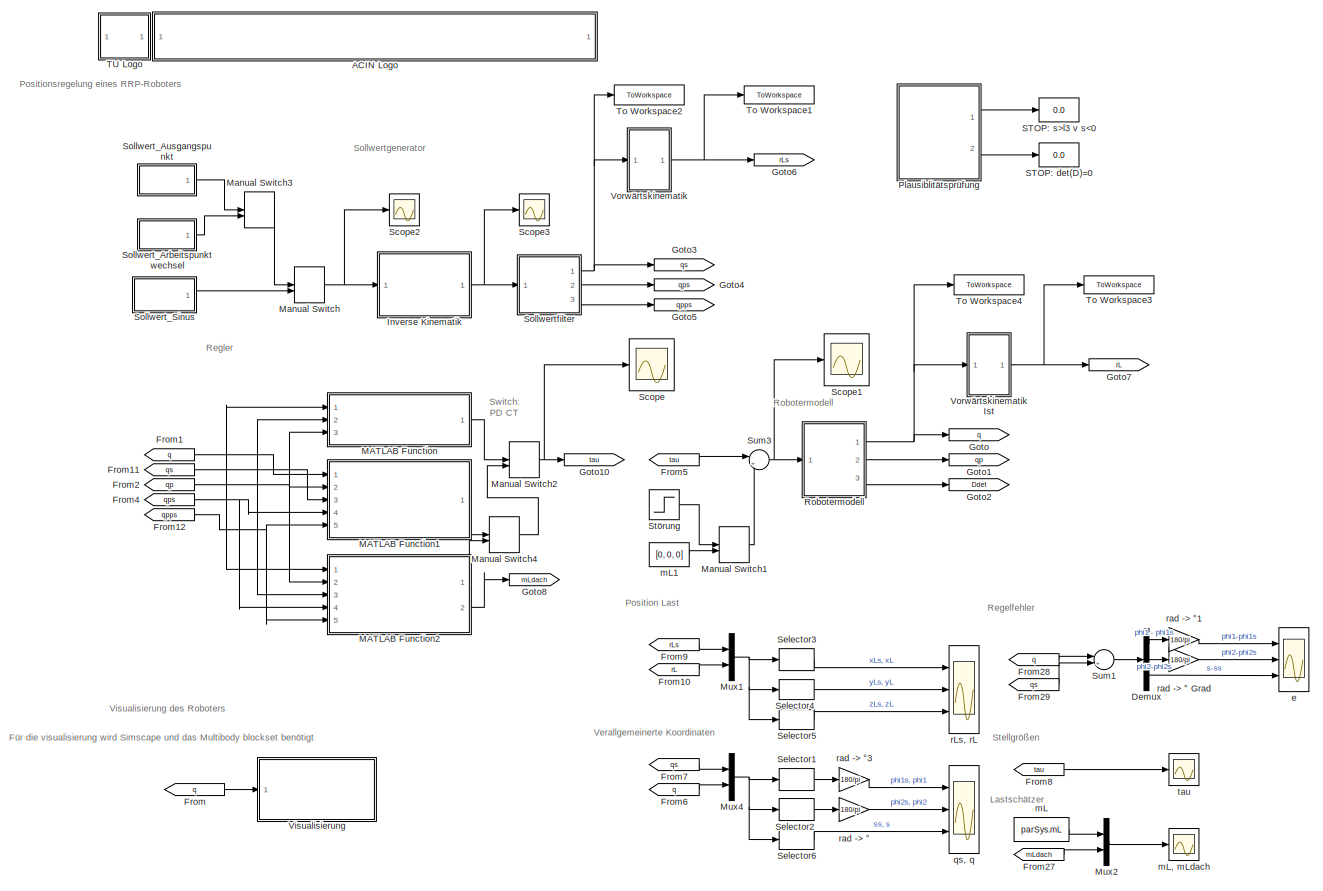
[diagram: root canvas - part 1/2, most of the canvas]
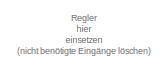
[diagram: root canvas - part 2/2, middle left region]
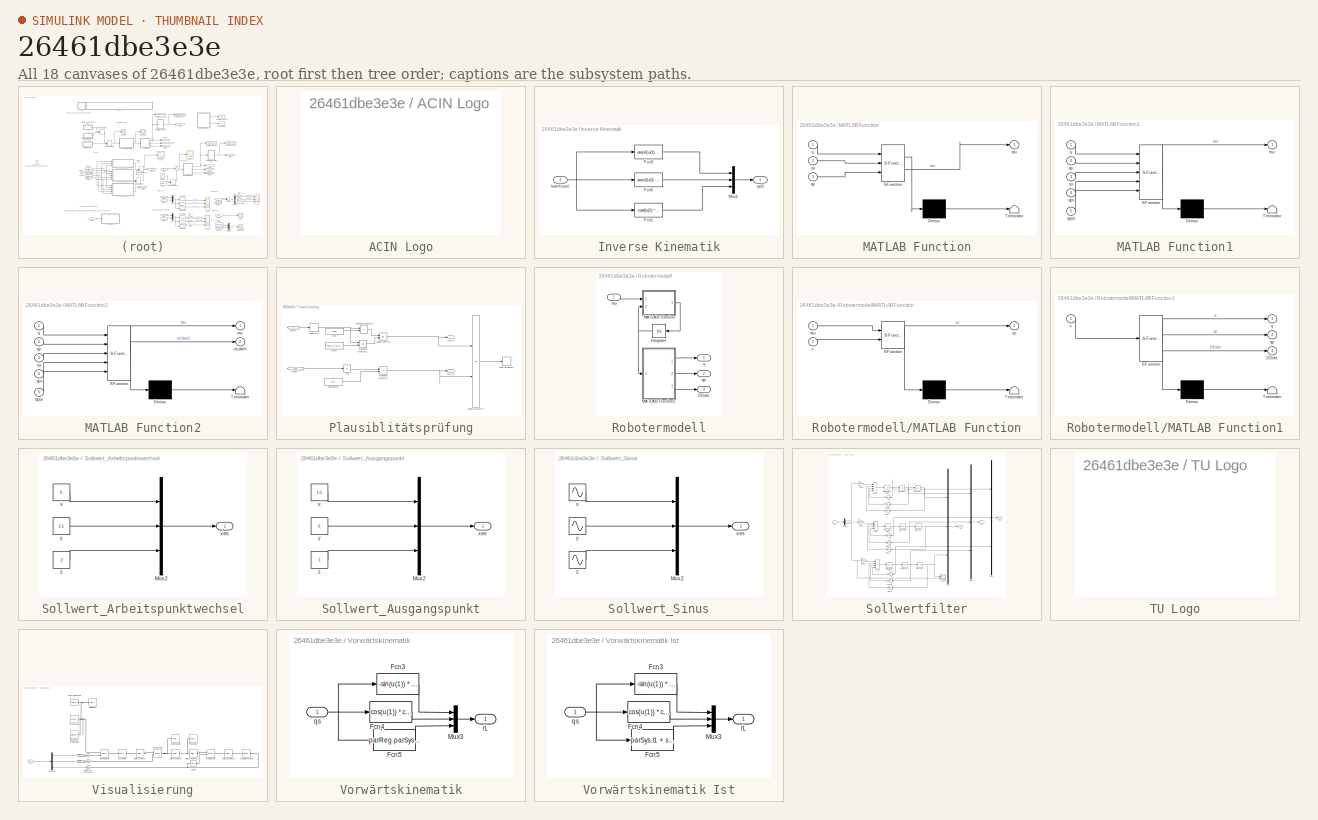
[diagram: thumbnail index - all 18 canvases of the model, root first then tree order]
MODEL slx_26461dbe3e3e
KIND model
CONFIG AbsTol = 1e-5
CONFIG EnableMultiTasking = on
CONFIG FixedStep = auto
CONFIG InitFcn = set_parameter
CONFIG MaxStep = auto
CONFIG MinStep = auto
CONFIG RelTol = 1e-6
CONFIG SampleTimeConstraint = Unconstrained
CONFIG SolverName = ode15s
CONFIG StartFcn = set_parameter
CONFIG StartTime = 0.0
CONFIG StopTime = 5
BLOCK [SubSystem] ACIN Logo
  Ports = []
  RequestExecContextInheritance = off
  UserDataPersistent = on
BLOCK [Demux] Demux
  Outputs = 3
  Ports = [1, 3]
BLOCK [From] From
  GotoTag = q
  TagVisibility = global
BLOCK [From] From1
  CloseFcn = tagdialog Close
  GotoTag = q
  TagVisibility = global
BLOCK [From] From10
  CloseFcn = tagdialog Close
  GotoTag = rL
  TagVisibility = global
BLOCK [From] From11
  CloseFcn = tagdialog Close
  GotoTag = qs
  TagVisibility = global
BLOCK [From] From12
  CloseFcn = tagdialog Close
  GotoTag = qpps
  TagVisibility = global
BLOCK [From] From2
  CloseFcn = tagdialog Close
  GotoTag = qp
  TagVisibility = global
BLOCK [From] From27
  CloseFcn = tagdialog Close
  GotoTag = mLdach
BLOCK [From] From28
  CloseFcn = tagdialog Close
  GotoTag = q
  TagVisibility = global
BLOCK [From] From29
  CloseFcn = tagdialog Close
  GotoTag = qs
  TagVisibility = global
BLOCK [From] From4
  CloseFcn = tagdialog Close
  GotoTag = qps
  TagVisibility = global
BLOCK [From] From5
  CloseFcn = tagdialog Close
  GotoTag = tau
  TagVisibility = global
BLOCK [From] From6
  CloseFcn = tagdialog Close
  GotoTag = q
  TagVisibility = global
BLOCK [From] From7
  CloseFcn = tagdialog Close
  GotoTag = qs
  TagVisibility = global
BLOCK [From] From8
  CloseFcn = tagdialog Close
  GotoTag = tau
  TagVisibility = global
BLOCK [From] From9
  CloseFcn = tagdialog Close
  GotoTag = rLs
  TagVisibility = global
BLOCK [Goto] Goto
  GotoTag = q
  TagVisibility = global
BLOCK [Goto] Goto1
  GotoTag = qp
  TagVisibility = global
BLOCK [Goto] Goto10
  GotoTag = tau
  TagVisibility = global
BLOCK [Goto] Goto2
  GotoTag = Ddet
  TagVisibility = global
BLOCK [Goto] Goto3
  GotoTag = qs
  TagVisibility = global
BLOCK [Goto] Goto4
  GotoTag = qps
  TagVisibility = global
BLOCK [Goto] Goto5
  GotoTag = qpps
  TagVisibility = global
BLOCK [Goto] Goto6
  GotoTag = rLs
  TagVisibility = global
BLOCK [Goto] Goto7
  GotoTag = rL
  TagVisibility = global
BLOCK [Goto] Goto8
  GotoTag = mLdach
BLOCK [SubSystem] Inverse Kinematik
  Ports = [1, 1]
  RequestExecContextInheritance = off
BLOCK [Fcn] Inverse Kinematik/Fcn1
  Expr = sqrt((u(1) ^ 2 + u(2) ^ 2 + u(3) ^ 2 - 2 * u(3) * parReg.parSys.l1 + parReg.parSys.l1 ^ 2)) - parReg.parSys.l2
BLOCK [Fcn] Inverse Kinematik/Fcn3
  Expr = atan2(-u(1), u(2))
BLOCK [Fcn] Inverse Kinematik/Fcn5
  Expr = atan2(u(3) - parReg.parSys.l1, sqrt(u(1) ^ 2 + u(2) ^ 2))
BLOCK [Mux] Inverse Kinematik/Mux1
  DisplayOption = bar
  Inputs = 3
  Ports = [3, 1]
BLOCK [Inport] Inverse Kinematik/kart.Koord
BLOCK [Outport] Inverse Kinematik/qsD
BLOCK [SubSystem] MATLAB Function
  ErrorFcn = Stateflow.Translate.translate
  PermitHierarchicalResolution = ExplicitOnly
  Ports = [3, 1]
  RequestExecContextInheritance = off
  SFBlockType = MATLAB Function
  TreatAsAtomicUnit = on
BLOCK [Demux] MATLAB Function/ Demux 
  Outputs = 1
  Ports = [1, 1]
BLOCK [S-Function] MATLAB Function/ SFunction 
  EnableBusSupport = on
  FunctionName = sf_sfun
  Parameters = parReg
  PortCounts = [3 2]
  Ports = [3, 2]
  SFcnIsStateOwnerBlock = off
  SFunctionDeploymentMode = off
  Tag = Stateflow S-Function 2
BLOCK [Terminator] MATLAB Function/ Terminator 
BLOCK [Inport] MATLAB Function/q
BLOCK [Inport] MATLAB Function/qp
  Port = 3
BLOCK [Inport] MATLAB Function/qs
  Port = 2
BLOCK [Outport] MATLAB Function/tau
BLOCK [SubSystem] MATLAB Function1
  ErrorFcn = Stateflow.Translate.translate
  PermitHierarchicalResolution = ExplicitOnly
  Ports = [5, 1]
  RequestExecContextInheritance = off
  SFBlockType = MATLAB Function
  TreatAsAtomicUnit = on
BLOCK [Demux] MATLAB Function1/ Demux 
  Outputs = 1
  Ports = [1, 1]
BLOCK [S-Function] MATLAB Function1/ SFunction 
  EnableBusSupport = on
  FunctionName = sf_sfun
  Parameters = parReg
  PortCounts = [5 2]
  Ports = [5, 2]
  SFcnIsStateOwnerBlock = off
  SFunctionDeploymentMode = off
  Tag = Stateflow S-Function 1
BLOCK [Terminator] MATLAB Function1/ Terminator 
BLOCK [Inport] MATLAB Function1/q
BLOCK [Inport] MATLAB Function1/qp
  Port = 2
BLOCK [Inport] MATLAB Function1/qpps
  Port = 5
BLOCK [Inport] MATLAB Function1/qps
  Port = 4
BLOCK [Inport] MATLAB Function1/qs
  Port = 3
BLOCK [Outport] MATLAB Function1/tau
BLOCK [SubSystem] MATLAB Function2
  ErrorFcn = Stateflow.Translate.translate
  PermitHierarchicalResolution = ExplicitOnly
  Ports = [5, 2]
  RequestExecContextInheritance = off
  SFBlockType = MATLAB Function
  TreatAsAtomicUnit = on
BLOCK [Demux] MATLAB Function2/ Demux 
  Outputs = 1
  Ports = [1, 1]
BLOCK [S-Function] MATLAB Function2/ SFunction 
  EnableBusSupport = on
  FunctionName = sf_sfun
  Parameters = parReg
  PortCounts = [5 3]
  Ports = [5, 3]
  SFcnIsStateOwnerBlock = off
  SFunctionDeploymentMode = off
  Tag = Stateflow S-Function 3
BLOCK [Terminator] MATLAB Function2/ Terminator 
BLOCK [Outport] MATLAB Function2/mLdach
  Port = 2
BLOCK [Inport] MATLAB Function2/q
BLOCK [Inport] MATLAB Function2/qp
  Port = 2
BLOCK [Inport] MATLAB Function2/qpps
  Port = 5
BLOCK [Inport] MATLAB Function2/qps
  Port = 4
BLOCK [Inport] MATLAB Function2/qs
  Port = 3
BLOCK [Outport] MATLAB Function2/tau
BLOCK [ManualSwitch] Manual Switch
BLOCK [ManualSwitch] Manual Switch1
  CurrentSetting = 0
BLOCK [ManualSwitch] Manual Switch2
BLOCK [ManualSwitch] Manual Switch3
  CurrentSetting = 0
BLOCK [ManualSwitch] Manual Switch4
  CurrentSetting = 0
BLOCK [Mux] Mux1
  DisplayOption = bar
  Inputs = 2
  Ports = [2, 1]
BLOCK [Mux] Mux2
  DisplayOption = bar
  Inputs = 2
  Ports = [2, 1]
BLOCK [Mux] Mux4
  DisplayOption = bar
  Inputs = 2
  Ports = [2, 1]
BLOCK [SubSystem] Plausiblitätsprüfung
  Ports = [0, 2]
  RequestExecContextInheritance = off
BLOCK [Abs] Plausiblitätsprüfung/Abs
  SaturateOnIntegerOverflow = off
BLOCK [From] Plausiblitätsprüfung/From2
  CloseFcn = tagdialog Close
  GotoTag = Ddet
  TagVisibility = global
BLOCK [From] Plausiblitätsprüfung/From6
  CloseFcn = tagdialog Close
  GotoTag = q
  TagVisibility = global
BLOCK [Logic] Plausiblitätsprüfung/Logical Operator
  AllPortsSameDT = off
  Operator = OR
  OutDataTypeStr = boolean
  Ports = [2, 1]
BLOCK [Logic] Plausiblitätsprüfung/Logical Operator1
  AllPortsSameDT = off
  Operator = OR
  OutDataTypeStr = boolean
  Ports = [2, 1]
BLOCK [RelationalOperator] Plausiblitätsprüfung/Relational Operator
  InputSameDT = off
  Operator = <=
  OutDataTypeStr = boolean
  Ports = [2, 1]
BLOCK [RelationalOperator] Plausiblitätsprüfung/Relational Operator1
  InputSameDT = off
  OutDataTypeStr = boolean
  Ports = [2, 1]
BLOCK [RelationalOperator] Plausiblitätsprüfung/Relational Operator2
  InputSameDT = off
  Operator = <=
  OutDataTypeStr = boolean
  Ports = [2, 1]
BLOCK [Outport] Plausiblitätsprüfung/STOP_D
  Port = 2
BLOCK [Outport] Plausiblitätsprüfung/STOP_s
BLOCK [Constant] Plausiblitätsprüfung/Schwellwert
  Value = 1e-4
BLOCK [Selector] Plausiblitätsprüfung/Selector3
  IndexOptions = Index vector (dialog)
  Indices = [3]
  InputPortWidth = 3
  OutputSizes = 1
  Ports = [1, 1]
BLOCK [Stop] Plausiblitätsprüfung/Stop Simulation1
BLOCK [Constant] Plausiblitätsprüfung/smax
  Value = parSys.l3-0.001
BLOCK [Constant] Plausiblitätsprüfung/smin
  Value = 0.001
BLOCK [SubSystem] Robotermodell
  Ports = [1, 3]
  RequestExecContextInheritance = off
BLOCK [Outport] Robotermodell/DDdet
  Port = 3
BLOCK [Integrator] Robotermodell/Integrator
  InitialCondition = [parSys.phi10; parSys.phi20; parSys.s0; parSys.phi1p0; parSys.phi2p0; parSys.sp0]
  Ports = [1, 1]
BLOCK [SubSystem] Robotermodell/MATLAB Function
  ErrorFcn = Stateflow.Translate.translate
  PermitHierarchicalResolution = ExplicitOnly
  Ports = [2, 1]
  RequestExecContextInheritance = off
  SFBlockType = MATLAB Function
  TreatAsAtomicUnit = on
BLOCK [Demux] Robotermodell/MATLAB Function/ Demux 
  Outputs = 1
  Ports = [1, 1]
BLOCK [S-Function] Robotermodell/MATLAB Function/ SFunction 
  EnableBusSupport = on
  FunctionName = sf_sfun
  Parameters = parSys
  PortCounts = [2 2]
  Ports = [2, 2]
  SFcnIsStateOwnerBlock = off
  SFunctionDeploymentMode = off
  Tag = Stateflow S-Function 6
BLOCK [Terminator] Robotermodell/MATLAB Function/ Terminator 
BLOCK [Inport] Robotermodell/MATLAB Function/tau
BLOCK [Inport] Robotermodell/MATLAB Function/x
  Port = 2
BLOCK [Outport] Robotermodell/MATLAB Function/xp
BLOCK [SubSystem] Robotermodell/MATLAB Function1
  ErrorFcn = Stateflow.Translate.translate
  PermitHierarchicalResolution = ExplicitOnly
  Ports = [1, 3]
  RequestExecContextInheritance = off
  SFBlockType = MATLAB Function
  TreatAsAtomicUnit = on
BLOCK [Demux] Robotermodell/MATLAB Function1/ Demux 
  Outputs = 1
  Ports = [1, 1]
BLOCK [S-Function] Robotermodell/MATLAB Function1/ SFunction 
  EnableBusSupport = on
  FunctionName = sf_sfun
  Parameters = parSys
  PortCounts = [1 4]
  Ports = [1, 4]
  SFcnIsStateOwnerBlock = off
  SFunctionDeploymentMode = off
  Tag = Stateflow S-Function 7
BLOCK [Terminator] Robotermodell/MATLAB Function1/ Terminator 
BLOCK [Outport] Robotermodell/MATLAB Function1/DDdet
  Port = 3
BLOCK [Outport] Robotermodell/MATLAB Function1/q
BLOCK [Outport] Robotermodell/MATLAB Function1/qp
  Port = 2
BLOCK [Inport] Robotermodell/MATLAB Function1/x
BLOCK [Outport] Robotermodell/q
BLOCK [Outport] Robotermodell/qp
  Port = 2
BLOCK [Inport] Robotermodell/tau
BLOCK [Display] STOP: det(D)=0
  Decimation = 1
  Ports = [1]
BLOCK [Display] STOP: s>l3 v s<0
  Decimation = 1
  Ports = [1]
BLOCK [Scope] Scope
  Floating = off
  NumInputPorts = 1
  Ports = [1]
  ScopeSpecificationString = Simulink.scopes.TimeScopeBlockCfg('CurrentConfiguration', extmgr.ConfigurationSet(extmgr.Configuration('Core','General UI',true),extmgr.Configuration('Core','Source UI',true),extmgr.Configuration('Sources','WiredSimulink',true,'DataLoggingVariableName','ScopeData1'),extmgr.Configuration('Visuals','Time Domain',true,'SerializedDisplays',{struct('MinYLimReal','-8935.39392','MaxYLimReal','6027.57282'...<+1466ch>
BLOCK [Scope] Scope1
  Floating = off
  NumInputPorts = 1
  Ports = [1]
  ScopeSpecificationString = Simulink.scopes.TimeScopeBlockCfg('CurrentConfiguration', extmgr.ConfigurationSet(extmgr.Configuration('Core','General UI',true),extmgr.Configuration('Core','Source UI',true),extmgr.Configuration('Sources','WiredSimulink',true,'DataLoggingVariableName','ScopeData2'),extmgr.Configuration('Visuals','Time Domain',true,'SerializedDisplays',{struct('MinYLimReal','-8935.39392','MaxYLimReal','6027.57282'...<+1437ch>
BLOCK [Scope] Scope2
  Floating = off
  NumInputPorts = 1
  Ports = [1]
  ScopeSpecificationString = Simulink.scopes.TimeScopeBlockCfg('CurrentConfiguration', extmgr.ConfigurationSet(extmgr.Configuration('Core','General UI',true,'FigureColor',[0.156862745098039 0.156862745098039 0.156862745098039]),extmgr.Configuration('Core','Source UI',true),extmgr.Configuration('Sources','WiredSimulink',true,'DataLoggingVariableName','ScopeData2','DataLoggingSaveFormat','StructureWithTime','DataLoggingDecimati...<+2786ch>
BLOCK [Scope] Scope3
  Floating = off
  NumInputPorts = 1
  Ports = [1]
  ScopeSpecificationString = Simulink.scopes.TimeScopeBlockCfg('CurrentConfiguration', extmgr.ConfigurationSet(extmgr.Configuration('Core','General UI',true,'FigureColor',[0.156862745098039 0.156862745098039 0.156862745098039]),extmgr.Configuration('Core','Source UI',true),extmgr.Configuration('Sources','WiredSimulink',true,'DataLoggingVariableName','ScopeData3','DataLoggingSaveFormat','StructureWithTime','DataLoggingDecimati...<+2798ch>
BLOCK [Selector] Selector1
  IndexOptions = Index vector (dialog)
  Indices = [1 4]
  InputPortWidth = 6
  OutputSizes = 1
  Ports = [1, 1]
BLOCK [Selector] Selector2
  IndexOptions = Index vector (dialog)
  Indices = [2 5]
  InputPortWidth = 6
  OutputSizes = 1
  Ports = [1, 1]
BLOCK [Selector] Selector3
  IndexOptions = Index vector (dialog)
  Indices = [1 4]
  InputPortWidth = 6
  OutputSizes = 1
  Ports = [1, 1]
BLOCK [Selector] Selector4
  IndexOptions = Index vector (dialog)
  Indices = [2 5]
  InputPortWidth = 6
  OutputSizes = 1
  Ports = [1, 1]
BLOCK [Selector] Selector5
  IndexOptions = Index vector (dialog)
  Indices = [3 6]
  InputPortWidth = 6
  OutputSizes = 1
  Ports = [1, 1]
BLOCK [Selector] Selector6
  IndexOptions = Index vector (dialog)
  Indices = [3 6]
  InputPortWidth = 6
  OutputSizes = 1
  Ports = [1, 1]
BLOCK [SubSystem] Sollwert_Arbeitspunktwechsel
  Ports = [0, 1]
  RequestExecContextInheritance = off
BLOCK [Mux] Sollwert_Arbeitspunktwechsel/Mux2
  DisplayOption = bar
  Inputs = 3
  Ports = [3, 1]
BLOCK [Constant] Sollwert_Arbeitspunktwechsel/x
  Value = 0
BLOCK [Outport] Sollwert_Arbeitspunktwechsel/xes
BLOCK [Constant] Sollwert_Arbeitspunktwechsel/y
  Value = 1.5
BLOCK [Constant] Sollwert_Arbeitspunktwechsel/z
  Value = 2
BLOCK [SubSystem] Sollwert_Ausgangspunkt
  Ports = [0, 1]
  RequestExecContextInheritance = off
BLOCK [Mux] Sollwert_Ausgangspunkt/Mux2
  DisplayOption = bar
  Inputs = 3
  Ports = [3, 1]
BLOCK [Constant] Sollwert_Ausgangspunkt/x
  Value = 1.5
BLOCK [Outport] Sollwert_Ausgangspunkt/xes
BLOCK [Constant] Sollwert_Ausgangspunkt/y
  Value = 0
BLOCK [Constant] Sollwert_Ausgangspunkt/z
BLOCK [SubSystem] Sollwert_Sinus
  Ports = [0, 1]
  RequestExecContextInheritance = off
BLOCK [Mux] Sollwert_Sinus/Mux2
  DisplayOption = bar
  Inputs = 3
  Ports = [3, 1]
BLOCK [Sin] Sollwert_Sinus/x
  Amplitude = 1.5
  Frequency = 2*pi*parReg.traj_fKreis
  Phase = pi/2
  Ports = [0, 1]
  SampleTime = 0
BLOCK [Outport] Sollwert_Sinus/xes
BLOCK [Sin] Sollwert_Sinus/y
  Amplitude = 1.5
  Frequency = 2*pi*parReg.traj_fKreis
  Ports = [0, 1]
  SampleTime = 0
BLOCK [Sin] Sollwert_Sinus/z
  Amplitude = 0.5
  Bias = 1.5
  Frequency = 2*pi*parReg.traj_fz
  Phase = -pi/2
  Ports = [0, 1]
  SampleTime = 0
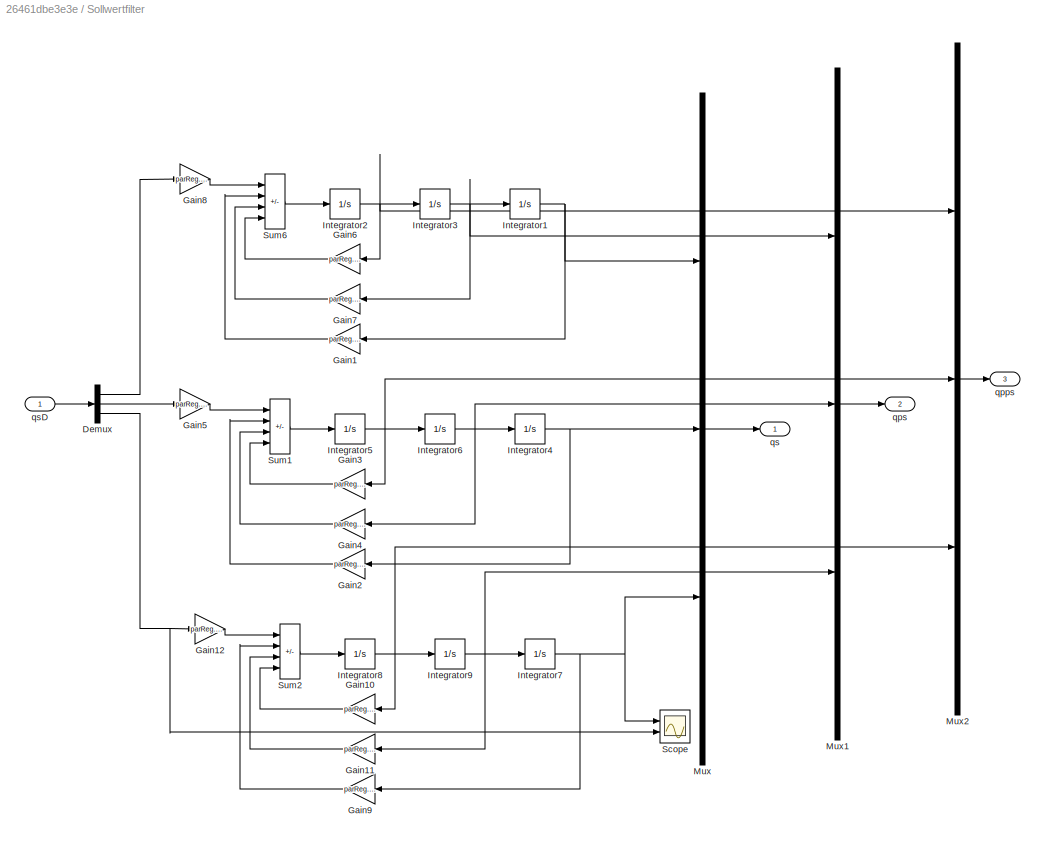
BLOCK [SubSystem] Sollwertfilter
  Ports = [1, 3]
  RequestExecContextInheritance = off
BLOCK [Demux] Sollwertfilter/Demux
  Outputs = 3
  Ports = [1, 3]
BLOCK [Gain] Sollwertfilter/Gain1
  Gain = parReg.par_filt_a0
  OutDataTypeStr = Inherit: Same as input
  ParamDataTypeStr = Inherit: Same as input
  SaturateOnIntegerOverflow = on
BLOCK [Gain] Sollwertfilter/Gain10
  Gain = parReg.par_filt_a2
  OutDataTypeStr = Inherit: Same as input
  ParamDataTypeStr = Inherit: Same as input
  SaturateOnIntegerOverflow = on
BLOCK [Gain] Sollwertfilter/Gain11
  Gain = parReg.par_filt_a1
  OutDataTypeStr = Inherit: Same as input
  ParamDataTypeStr = Inherit: Same as input
  SaturateOnIntegerOverflow = on
BLOCK [Gain] Sollwertfilter/Gain12
  Gain = parReg.par_filt_V
  OutDataTypeStr = Inherit: Same as input
  ParamDataTypeStr = Inherit: Same as input
  SaturateOnIntegerOverflow = on
BLOCK [Gain] Sollwertfilter/Gain2
  Gain = parReg.par_filt_a0
  OutDataTypeStr = Inherit: Same as input
  ParamDataTypeStr = Inherit: Same as input
  SaturateOnIntegerOverflow = on
BLOCK [Gain] Sollwertfilter/Gain3
  Gain = parReg.par_filt_a2
  OutDataTypeStr = Inherit: Same as input
  ParamDataTypeStr = Inherit: Same as input
  SaturateOnIntegerOverflow = on
BLOCK [Gain] Sollwertfilter/Gain4
  Gain = parReg.par_filt_a1
  OutDataTypeStr = Inherit: Same as input
  ParamDataTypeStr = Inherit: Same as input
  SaturateOnIntegerOverflow = on
BLOCK [Gain] Sollwertfilter/Gain5
  Gain = parReg.par_filt_V
  OutDataTypeStr = Inherit: Same as input
  ParamDataTypeStr = Inherit: Same as input
  SaturateOnIntegerOverflow = on
BLOCK [Gain] Sollwertfilter/Gain6
  Gain = parReg.par_filt_a2
  OutDataTypeStr = Inherit: Same as input
  ParamDataTypeStr = Inherit: Same as input
  SaturateOnIntegerOverflow = on
BLOCK [Gain] Sollwertfilter/Gain7
  Gain = parReg.par_filt_a1
  OutDataTypeStr = Inherit: Same as input
  ParamDataTypeStr = Inherit: Same as input
  SaturateOnIntegerOverflow = on
BLOCK [Gain] Sollwertfilter/Gain8
  Gain = parReg.par_filt_V
  OutDataTypeStr = Inherit: Same as input
  ParamDataTypeStr = Inherit: Same as input
  SaturateOnIntegerOverflow = on
BLOCK [Gain] Sollwertfilter/Gain9
  Gain = parReg.par_filt_a0
  OutDataTypeStr = Inherit: Same as input
  ParamDataTypeStr = Inherit: Same as input
  SaturateOnIntegerOverflow = on
BLOCK [Integrator] Sollwertfilter/Integrator1
  InitialCondition = parReg.traj_phi10
  Ports = [1, 1]
BLOCK [Integrator] Sollwertfilter/Integrator2
  Ports = [1, 1]
BLOCK [Integrator] Sollwertfilter/Integrator3
  Ports = [1, 1]
BLOCK [Integrator] Sollwertfilter/Integrator4
  InitialCondition = parReg.traj_phi20
  Ports = [1, 1]
BLOCK [Integrator] Sollwertfilter/Integrator5
  Ports = [1, 1]
BLOCK [Integrator] Sollwertfilter/Integrator6
  Ports = [1, 1]
BLOCK [Integrator] Sollwertfilter/Integrator7
  InitialCondition = parReg.traj_s0
  Ports = [1, 1]
BLOCK [Integrator] Sollwertfilter/Integrator8
  Ports = [1, 1]
BLOCK [Integrator] Sollwertfilter/Integrator9
  Ports = [1, 1]
BLOCK [Mux] Sollwertfilter/Mux
  DisplayOption = bar
  Inputs = 3
  Ports = [3, 1]
BLOCK [Mux] Sollwertfilter/Mux1
  DisplayOption = bar
  Inputs = 3
  Ports = [3, 1]
BLOCK [Mux] Sollwertfilter/Mux2
  DisplayOption = bar
  Inputs = 3
  Ports = [3, 1]
BLOCK [Scope] Sollwertfilter/Scope
  Floating = off
  NumInputPorts = 2
  Ports = [2]
  ScopeSpecificationString = C++SS(StrPVP('Open','off'),StrPVP('TimeRange','auto'),StrPVP('TickLabels','OneTimeTick'),StrPVP('ShowLegends','off'),StrPVP('LimitDataPoints','off'),StrPVP('MaxDataPoints','5000'),StrPVP('SaveToWorkspace','off'),StrPVP('SaveName','ScopeData8'),StrPVP('YMin','-5~-5'),StrPVP('YMax','5~5'),StrPVP('BlockParamSampleInput','off'),StrPVP('BlockParamSampleTime','-1'),StrPVP('ZoomMode','on'),StrPVP('Grid',...<+603ch>
BLOCK [Sum] Sollwertfilter/Sum1
  IconShape = rectangular
  InputSameDT = on
  Inputs = +---
  OutDataTypeStr = Inherit: Same as first input
  Ports = [4, 1]
  SaturateOnIntegerOverflow = on
BLOCK [Sum] Sollwertfilter/Sum2
  IconShape = rectangular
  InputSameDT = on
  Inputs = +---
  OutDataTypeStr = Inherit: Same as first input
  Ports = [4, 1]
  SaturateOnIntegerOverflow = on
BLOCK [Sum] Sollwertfilter/Sum6
  IconShape = rectangular
  InputSameDT = on
  Inputs = +---
  OutDataTypeStr = Inherit: Same as first input
  Ports = [4, 1]
  SaturateOnIntegerOverflow = on
BLOCK [Outport] Sollwertfilter/qpps
  Port = 3
BLOCK [Outport] Sollwertfilter/qps
  Port = 2
BLOCK [Outport] Sollwertfilter/qs
BLOCK [Inport] Sollwertfilter/qsD
BLOCK [Step] Störung
  After = [250, 250, 200]
  SampleTime = 0
BLOCK [Sum] Sum1
  Inputs = |+-
  Ports = [2, 1]
BLOCK [Sum] Sum3
  Inputs = |++
  Ports = [2, 1]
BLOCK [SubSystem] TU Logo
  Ports = []
  RequestExecContextInheritance = off
  UserDataPersistent = on
BLOCK [ToWorkspace] To Workspace1
  MaxDataPoints = inf
  Ports = [1]
  SampleTime = -1
  SaveFormat = Structure With Time
  VariableName = simout_rLs
BLOCK [ToWorkspace] To Workspace2
  MaxDataPoints = inf
  Ports = [1]
  SampleTime = -1
  SaveFormat = Structure With Time
  VariableName = simout_qs
BLOCK [ToWorkspace] To Workspace3
  MaxDataPoints = inf
  Ports = [1]
  SampleTime = -1
  SaveFormat = Structure With Time
  VariableName = simout_rL
BLOCK [ToWorkspace] To Workspace4
  MaxDataPoints = inf
  Ports = [1]
  SampleTime = -1
  SaveFormat = Structure With Time
  VariableName = simout_q
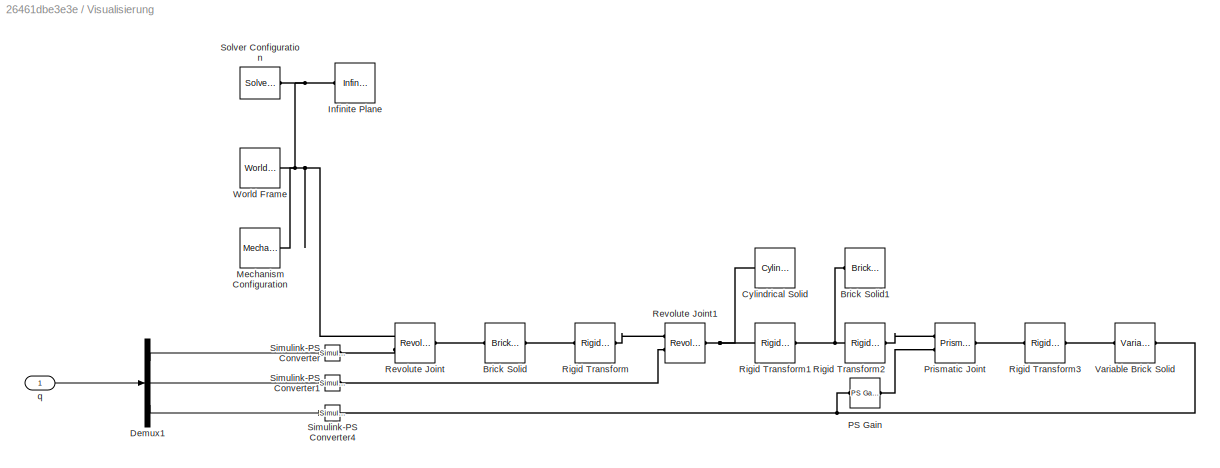
BLOCK [SubSystem] Visualisierung
  Ports = [1]
  RequestExecContextInheritance = off
BLOCK [Reference] Visualisierung/Brick Solid  REF=sm_lib/Body Elements/Brick Solid
  Ports = [0, 0, 0, 0, 0, 1, 1]
  SourceBlock = sm_lib/Body Elements/Brick Solid
  SourceProductBaseCode = MS
  SourceType = Brick Solid
BLOCK [Reference] Visualisierung/Brick Solid1  REF=sm_lib/Body Elements/Brick Solid
  Commented = on
  Ports = [0, 0, 0, 0, 0, 1, 1]
  SourceBlock = sm_lib/Body Elements/Brick Solid
  SourceProductBaseCode = MS
  SourceType = Brick Solid
BLOCK [Reference] Visualisierung/Cylindrical Solid  REF=sm_lib/Body Elements/Cylindrical Solid
  Ports = [0, 0, 0, 0, 0, 0, 1]
  SourceBlock = sm_lib/Body Elements/Cylindrical Solid
  SourceProductBaseCode = MS
  SourceType = Cylindrical Solid
BLOCK [Demux] Visualisierung/Demux1
  Outputs = 3
  Ports = [1, 3]
BLOCK [Reference] Visualisierung/Infinite Plane  REF=sm_lib/Curves and Surfaces/Infinite Plane
  Ports = [0, 0, 0, 0, 0, 1, 1]
  SourceBlock = sm_lib/Curves and Surfaces/Infinite Plane
  SourceProductBaseCode = MS
  SourceType = Infinite Plane
BLOCK [Reference] Visualisierung/Mechanism Configuration  REF=sm_lib/Utilities/Mechanism
Configuration
  Ports = [0, 0, 0, 0, 0, 0, 1]
  SourceBlock = sm_lib/Utilities/Mechanism\nConfiguration
  SourceProductBaseCode = MS
  SourceType = Mechanism\nConfiguration
BLOCK [Reference] Visualisierung/PS Gain  REF=fl_lib/Physical Signals/Functions/PS Gain
  Ports = [0, 0, 0, 0, 0, 1, 1]
  SourceBlock = fl_lib/Physical Signals/Functions/PS Gain
  SourceProductBaseCode = SS
  SourceType = PS Gain
BLOCK [Reference] Visualisierung/Prismatic Joint  REF=sm_lib/Joints/Prismatic
Joint
  Ports = [0, 0, 0, 0, 0, 2, 1]
  SourceBlock = sm_lib/Joints/Prismatic\nJoint
  SourceProductBaseCode = MS
  SourceType = Prismatic\nJoint
BLOCK [Reference] Visualisierung/Revolute Joint  REF=sm_lib/Joints/Revolute Joint
  Ports = [0, 0, 0, 0, 0, 2, 1]
  SourceBlock = sm_lib/Joints/Revolute Joint
  SourceProductBaseCode = MS
  SourceType = Revolute Joint
BLOCK [Reference] Visualisierung/Revolute Joint1  REF=sm_lib/Joints/Revolute Joint
  Ports = [0, 0, 0, 0, 0, 2, 1]
  SourceBlock = sm_lib/Joints/Revolute Joint
  SourceProductBaseCode = MS
  SourceType = Revolute Joint
BLOCK [Reference] Visualisierung/Rigid Transform  REF=sm_lib/Frames and
Transforms/Rigid
Transform
  Ports = [0, 0, 0, 0, 0, 1, 1]
  SourceBlock = sm_lib/Frames and\nTransforms/Rigid\nTransform
  SourceProductBaseCode = MS
  SourceType = Rigid\nTransform
BLOCK [Reference] Visualisierung/Rigid Transform1  REF=sm_lib/Frames and
Transforms/Rigid
Transform
  Ports = [0, 0, 0, 0, 0, 1, 1]
  SourceBlock = sm_lib/Frames and\nTransforms/Rigid\nTransform
  SourceProductBaseCode = MS
  SourceType = Rigid\nTransform
BLOCK [Reference] Visualisierung/Rigid Transform2  REF=sm_lib/Frames and
Transforms/Rigid
Transform
  Ports = [0, 0, 0, 0, 0, 1, 1]
  SourceBlock = sm_lib/Frames and\nTransforms/Rigid\nTransform
  SourceProductBaseCode = MS
  SourceType = Rigid\nTransform
BLOCK [Reference] Visualisierung/Rigid Transform3  REF=sm_lib/Frames and
Transforms/Rigid
Transform
  Ports = [0, 0, 0, 0, 0, 1, 1]
  SourceBlock = sm_lib/Frames and\nTransforms/Rigid\nTransform
  SourceProductBaseCode = MS
  SourceType = Rigid\nTransform
BLOCK [Reference] Visualisierung/Simulink-PS Converter  REF=nesl_utility/Simulink-PS
Converter
  Ports = [1, 0, 0, 0, 0, 0, 1]
  SourceBlock = nesl_utility/Simulink-PS\nConverter
  SourceProductBaseCode = SS
  SourceType = Simulink-PS\nConverter
BLOCK [Reference] Visualisierung/Simulink-PS Converter1  REF=nesl_utility/Simulink-PS
Converter
  Ports = [1, 0, 0, 0, 0, 0, 1]
  SourceBlock = nesl_utility/Simulink-PS\nConverter
  SourceProductBaseCode = SS
  SourceType = Simulink-PS\nConverter
BLOCK [Reference] Visualisierung/Simulink-PS Converter4  REF=nesl_utility/Simulink-PS
Converter
  Ports = [1, 0, 0, 0, 0, 0, 1]
  SourceBlock = nesl_utility/Simulink-PS\nConverter
  SourceProductBaseCode = SS
  SourceType = Simulink-PS\nConverter
BLOCK [Reference] Visualisierung/Solver Configuration  REF=nesl_utility/Solver
Configuration
  Ports = [0, 0, 0, 0, 0, 0, 1]
  SourceBlock = nesl_utility/Solver\nConfiguration
  SourceProductBaseCode = SS
  SourceType = Solver\nConfiguration
BLOCK [Reference] Visualisierung/Variable Brick Solid  REF=sm_lib/Body Elements/Variable Mass/Variable
Brick Solid
  Ports = [0, 0, 0, 0, 0, 1, 1]
  SourceBlock = sm_lib/Body Elements/Variable Mass/Variable\nBrick Solid
  SourceProductBaseCode = MS
  SourceType = Variable\nBrick Solid
BLOCK [Reference] Visualisierung/World Frame  REF=sm_lib/Frames and
Transforms/World Frame
  Ports = [0, 0, 0, 0, 0, 0, 1]
  SourceBlock = sm_lib/Frames and\nTransforms/World Frame
  SourceProductBaseCode = MS
  SourceType = World Frame
BLOCK [Inport] Visualisierung/q
BLOCK [SubSystem] Vorwärtskinematik
  Ports = [1, 1]
  RequestExecContextInheritance = off
BLOCK [SubSystem] Vorwärtskinematik Ist
  Ports = [1, 1]
  RequestExecContextInheritance = off
BLOCK [Fcn] Vorwärtskinematik Ist/Fcn3
  Expr = -sin(u(1)) * cos(u(2)) * (parSys.l2 + u(3))
BLOCK [Fcn] Vorwärtskinematik Ist/Fcn4
  Expr = cos(u(1)) * cos(u(2)) * (parSys.l2 + u(3))
BLOCK [Fcn] Vorwärtskinematik Ist/Fcn5
  Expr = parSys.l1 + sin(u(2)) * parSys.l2 + sin(u(2)) * u(3)
BLOCK [Mux] Vorwärtskinematik Ist/Mux3
  DisplayOption = bar
  Inputs = 3
  Ports = [3, 1]
BLOCK [Inport] Vorwärtskinematik Ist/qs
BLOCK [Outport] Vorwärtskinematik Ist/rL
BLOCK [Fcn] Vorwärtskinematik/Fcn3
  Expr = -sin(u(1)) * cos(u(2)) * (parReg.parSys.l2 + u(3))
BLOCK [Fcn] Vorwärtskinematik/Fcn4
  Expr = cos(u(1)) * cos(u(2)) * (parReg.parSys.l2 + u(3))
BLOCK [Fcn] Vorwärtskinematik/Fcn5
  Expr = parReg.parSys.l1 + sin(u(2)) * parReg.parSys.l2 + sin(u(2)) * u(3)
BLOCK [Mux] Vorwärtskinematik/Mux3
  DisplayOption = bar
  Inputs = 3
  Ports = [3, 1]
BLOCK [Inport] Vorwärtskinematik/qs
BLOCK [Outport] Vorwärtskinematik/rL
BLOCK [Scope] e
  Floating = off
  NumInputPorts = 3
  Ports = [3]
  ScopeSpecificationString = Simulink.scopes.TimeScopeBlockCfg('CurrentConfiguration', extmgr.ConfigurationSet(extmgr.Configuration('Core','General UI',true,'FigureColor',[0.156862745098039 0.156862745098039 0.156862745098039]),extmgr.Configuration('Core','Source UI',true),extmgr.Configuration('Sources','WiredSimulink',true,'DataLoggingVariableName','ScopeData7','DataLoggingSaveFormat','StructureWithTime','DataLoggingDecimati...<+5846ch>
BLOCK [Constant] mL
  Value = parSys.mL
BLOCK [Scope] mL, mLdach
  Floating = off
  NumInputPorts = 1
  Ports = [1]
  ScopeSpecificationString = Simulink.scopes.TimeScopeBlockCfg('CurrentConfiguration', extmgr.ConfigurationSet(extmgr.Configuration('Core','General UI',true),extmgr.Configuration('Core','Source UI',true),extmgr.Configuration('Sources','WiredSimulink',true,'DataLoggingVariableName','ScopeData6','DataLoggingSaveFormat','StructureWithTime','DataLoggingDecimation','1','DataLoggingDecimateData',true),extmgr.Configuration('Visuals'...<+3122ch>
BLOCK [Constant] mL1
  Value = [0, 0, 0]
BLOCK [Scope] qs, q
  Floating = off
  NumInputPorts = 3
  Ports = [3]
  ScopeSpecificationString = Simulink.scopes.TimeScopeBlockCfg('CurrentConfiguration', extmgr.ConfigurationSet(extmgr.Configuration('Core','General UI',true,'FigureColor',[0.156862745098039 0.156862745098039 0.156862745098039]),extmgr.Configuration('Core','Source UI',true),extmgr.Configuration('Sources','WiredSimulink',true,'DataLoggingSaveFormat','StructureWithTime','DataLoggingDecimation','1','DataLoggingDecimateData',true)...<+5146ch>
BLOCK [Scope] rLs, rL
  Floating = off
  NumInputPorts = 3
  Ports = [3]
  ScopeSpecificationString = Simulink.scopes.TimeScopeBlockCfg('CurrentConfiguration', extmgr.ConfigurationSet(extmgr.Configuration('Core','General UI',true,'FigureColor',[0.156862745098039 0.156862745098039 0.156862745098039]),extmgr.Configuration('Core','Source UI',true),extmgr.Configuration('Sources','WiredSimulink',true,'DataLoggingVariableName','ScopeData5','DataLoggingSaveFormat','StructureWithTime','DataLoggingDecimati...<+5139ch>
BLOCK [Gain] rad -> °
  Gain = 180/pi
BLOCK [Gain] rad -> ° Grad
  Gain = 180/pi
BLOCK [Gain] rad -> °1
  Gain = 180/pi
BLOCK [Gain] rad -> °3
  Gain = 180/pi
BLOCK [Scope] tau
  Floating = off
  NumInputPorts = 1
  Ports = [1]
  ScopeSpecificationString = Simulink.scopes.TimeScopeBlockCfg('CurrentConfiguration', extmgr.ConfigurationSet(extmgr.Configuration('Core','General UI',true,'FigureColor',[0.156862745098039 0.156862745098039 0.156862745098039]),extmgr.Configuration('Core','Source UI',true),extmgr.Configuration('Sources','WiredSimulink',true,'DataLoggingVariableName','ScopeData1','DataLoggingSaveFormat','StructureWithTime','DataLoggingDecimati...<+2749ch>
ANNOTATION (root): Für die visualisierung wird Simscape und das Multibody blockset benötigt
ANNOTATION (root): Lastschätzer
ANNOTATION (root): Position Last
ANNOTATION (root): Positionsregelung eines RRP-Roboters
ANNOTATION (root): Regelfehler
ANNOTATION (root): Regler
ANNOTATION (root): Regler hier einsetzen (nicht benötigte Eingänge löschen)
ANNOTATION (root): Robotermodell
ANNOTATION (root): Sollwertgenerator
ANNOTATION (root): Stellgrößen
ANNOTATION (root): Switch: PD CT
ANNOTATION (root): Verallgemeinerte Koordinaten
ANNOTATION (root): Visualisierung des Roboters
LINE Demux:1 -> rad -> °1:1
LINE Demux:2 -> rad -> ° Grad:1
LINE Demux:3 -> e:3
LINE From10:1 -> Mux1:2
NET From11:1 -> MATLAB Function1:3, MATLAB Function2:3, MATLAB Function:2
NET From12:1 -> MATLAB Function1:5, MATLAB Function2:5
NET From1:1 -> MATLAB Function1:1, MATLAB Function2:1, MATLAB Function:1
LINE From27:1 -> Mux2:2
LINE From28:1 -> Sum1:1
LINE From29:1 -> Sum1:2
NET From2:1 -> MATLAB Function1:2, MATLAB Function2:2, MATLAB Function:3
NET From4:1 -> MATLAB Function1:4, MATLAB Function2:4
LINE From5:1 -> Sum3:1
LINE From6:1 -> Mux4:2
LINE From7:1 -> Mux4:1
LINE From8:1 -> tau:1
LINE From9:1 -> Mux1:1
LINE From:1 -> Visualisierung:1
LINE Inverse Kinematik/Fcn1:1 -> Inverse Kinematik/Mux1:3
LINE Inverse Kinematik/Fcn3:1 -> Inverse Kinematik/Mux1:1
LINE Inverse Kinematik/Fcn5:1 -> Inverse Kinematik/Mux1:2
LINE Inverse Kinematik/Mux1:1 -> Inverse Kinematik/qsD:1
NET Inverse Kinematik/kart.Koord:1 -> Inverse Kinematik/Fcn1:1, Inverse Kinematik/Fcn3:1, Inverse Kinematik/Fcn5:1
NET Inverse Kinematik:1 -> Scope3:1, Sollwertfilter:1
LINE MATLAB Function1:1 -> Manual Switch4:1
LINE MATLAB Function2:1 -> Manual Switch4:2
LINE MATLAB Function2:2 -> Goto8:1
LINE MATLAB Function:1 -> Manual Switch2:1
LINE Manual Switch1:1 -> Sum3:2
NET Manual Switch2:1 -> Goto10:1, Scope:1
LINE Manual Switch3:1 -> Manual Switch:1
LINE Manual Switch4:1 -> Manual Switch2:2
NET Manual Switch:1 -> Inverse Kinematik:1, Scope2:1
NET Mux1:1 -> Selector3:1, Selector4:1, Selector5:1
LINE Mux2:1 -> mL, mLdach:1
NET Mux4:1 -> Selector1:1, Selector2:1, Selector6:1
LINE Plausiblitätsprüfung/Abs:1 -> Plausiblitätsprüfung/Relational Operator2:1
LINE Plausiblitätsprüfung/From2:1 -> Plausiblitätsprüfung/Abs:1
LINE Plausiblitätsprüfung/From6:1 -> Plausiblitätsprüfung/Selector3:1
LINE Plausiblitätsprüfung/Logical Operator1:1 -> Plausiblitätsprüfung/Stop Simulation1:1
NET Plausiblitätsprüfung/Logical Operator:1 -> Plausiblitätsprüfung/Logical Operator1:1, Plausiblitätsprüfung/STOP_s:1
LINE Plausiblitätsprüfung/Relational Operator1:1 -> Plausiblitätsprüfung/Logical Operator:2
NET Plausiblitätsprüfung/Relational Operator2:1 -> Plausiblitätsprüfung/Logical Operator1:2, Plausiblitätsprüfung/STOP_D:1
LINE Plausiblitätsprüfung/Relational Operator:1 -> Plausiblitätsprüfung/Logical Operator:1
LINE Plausiblitätsprüfung/Schwellwert:1 -> Plausiblitätsprüfung/Relational Operator2:2
NET Plausiblitätsprüfung/Selector3:1 -> Plausiblitätsprüfung/Relational Operator1:1, Plausiblitätsprüfung/Relational Operator:1
LINE Plausiblitätsprüfung/smax:1 -> Plausiblitätsprüfung/Relational Operator1:2
LINE Plausiblitätsprüfung/smin:1 -> Plausiblitätsprüfung/Relational Operator:2
LINE Plausiblitätsprüfung:1 -> STOP: s>l3 v s<0:1
LINE Plausiblitätsprüfung:2 -> STOP: det(D)=0:1
NET Robotermodell/Integrator:1 -> Robotermodell/MATLAB Function1:1, Robotermodell/MATLAB Function:2
LINE Robotermodell/MATLAB Function1:1 -> Robotermodell/q:1
LINE Robotermodell/MATLAB Function1:2 -> Robotermodell/qp:1
LINE Robotermodell/MATLAB Function1:3 -> Robotermodell/DDdet:1
LINE Robotermodell/MATLAB Function:1 -> Robotermodell/Integrator:1
LINE Robotermodell/tau:1 -> Robotermodell/MATLAB Function:1
NET Robotermodell:1 -> Goto:1, To Workspace4:1, Vorwärtskinematik Ist:1
LINE Robotermodell:2 -> Goto1:1
LINE Robotermodell:3 -> Goto2:1
LINE Selector1:1 -> rad -> °3:1
LINE Selector2:1 -> rad -> °:1
LINE Selector3:1 -> rLs, rL:1
LINE Selector4:1 -> rLs, rL:2
LINE Selector5:1 -> rLs, rL:3
LINE Selector6:1 -> qs, q:3
LINE Sollwert_Arbeitspunktwechsel/Mux2:1 -> Sollwert_Arbeitspunktwechsel/xes:1
LINE Sollwert_Arbeitspunktwechsel/x:1 -> Sollwert_Arbeitspunktwechsel/Mux2:1
LINE Sollwert_Arbeitspunktwechsel/y:1 -> Sollwert_Arbeitspunktwechsel/Mux2:2
LINE Sollwert_Arbeitspunktwechsel/z:1 -> Sollwert_Arbeitspunktwechsel/Mux2:3
LINE Sollwert_Arbeitspunktwechsel:1 -> Manual Switch3:2
LINE Sollwert_Ausgangspunkt/Mux2:1 -> Sollwert_Ausgangspunkt/xes:1
LINE Sollwert_Ausgangspunkt/x:1 -> Sollwert_Ausgangspunkt/Mux2:1
LINE Sollwert_Ausgangspunkt/y:1 -> Sollwert_Ausgangspunkt/Mux2:2
LINE Sollwert_Ausgangspunkt/z:1 -> Sollwert_Ausgangspunkt/Mux2:3
LINE Sollwert_Ausgangspunkt:1 -> Manual Switch3:1
LINE Sollwert_Sinus/Mux2:1 -> Sollwert_Sinus/xes:1
LINE Sollwert_Sinus/x:1 -> Sollwert_Sinus/Mux2:1
LINE Sollwert_Sinus/y:1 -> Sollwert_Sinus/Mux2:2
LINE Sollwert_Sinus/z:1 -> Sollwert_Sinus/Mux2:3
LINE Sollwert_Sinus:1 -> Manual Switch:2
LINE Sollwertfilter/Demux:1 -> Sollwertfilter/Gain8:1
LINE Sollwertfilter/Demux:2 -> Sollwertfilter/Gain5:1
NET Sollwertfilter/Demux:3 -> Sollwertfilter/Gain12:1, Sollwertfilter/Scope:2
LINE Sollwertfilter/Gain10:1 -> Sollwertfilter/Sum2:4
LINE Sollwertfilter/Gain11:1 -> Sollwertfilter/Sum2:3
LINE Sollwertfilter/Gain12:1 -> Sollwertfilter/Sum2:1
LINE Sollwertfilter/Gain1:1 -> Sollwertfilter/Sum6:2
LINE Sollwertfilter/Gain2:1 -> Sollwertfilter/Sum1:2
LINE Sollwertfilter/Gain3:1 -> Sollwertfilter/Sum1:4
LINE Sollwertfilter/Gain4:1 -> Sollwertfilter/Sum1:3
LINE Sollwertfilter/Gain5:1 -> Sollwertfilter/Sum1:1
LINE Sollwertfilter/Gain6:1 -> Sollwertfilter/Sum6:4
LINE Sollwertfilter/Gain7:1 -> Sollwertfilter/Sum6:3
LINE Sollwertfilter/Gain8:1 -> Sollwertfilter/Sum6:1
LINE Sollwertfilter/Gain9:1 -> Sollwertfilter/Sum2:2
NET Sollwertfilter/Integrator1:1 -> Sollwertfilter/Gain1:1, Sollwertfilter/Mux:1
NET Sollwertfilter/Integrator2:1 -> Sollwertfilter/Gain6:1, Sollwertfilter/Integrator3:1, Sollwertfilter/Mux2:1
NET Sollwertfilter/Integrator3:1 -> Sollwertfilter/Gain7:1, Sollwertfilter/Integrator1:1, Sollwertfilter/Mux1:1
NET Sollwertfilter/Integrator4:1 -> Sollwertfilter/Gain2:1, Sollwertfilter/Mux:2
NET Sollwertfilter/Integrator5:1 -> Sollwertfilter/Gain3:1, Sollwertfilter/Integrator6:1, Sollwertfilter/Mux2:2
NET Sollwertfilter/Integrator6:1 -> Sollwertfilter/Gain4:1, Sollwertfilter/Integrator4:1, Sollwertfilter/Mux1:2
NET Sollwertfilter/Integrator7:1 -> Sollwertfilter/Gain9:1, Sollwertfilter/Mux:3, Sollwertfilter/Scope:1
NET Sollwertfilter/Integrator8:1 -> Sollwertfilter/Gain10:1, Sollwertfilter/Integrator9:1, Sollwertfilter/Mux2:3
NET Sollwertfilter/Integrator9:1 -> Sollwertfilter/Gain11:1, Sollwertfilter/Integrator7:1, Sollwertfilter/Mux1:3
LINE Sollwertfilter/Mux1:1 -> Sollwertfilter/qps:1
LINE Sollwertfilter/Mux2:1 -> Sollwertfilter/qpps:1
LINE Sollwertfilter/Mux:1 -> Sollwertfilter/qs:1
LINE Sollwertfilter/Sum1:1 -> Sollwertfilter/Integrator5:1
LINE Sollwertfilter/Sum2:1 -> Sollwertfilter/Integrator8:1
LINE Sollwertfilter/Sum6:1 -> Sollwertfilter/Integrator2:1
LINE Sollwertfilter/qsD:1 -> Sollwertfilter/Demux:1
NET Sollwertfilter:1 -> Goto3:1, To Workspace2:1, Vorwärtskinematik:1
LINE Sollwertfilter:2 -> Goto4:1
LINE Sollwertfilter:3 -> Goto5:1
LINE Störung:1 -> Manual Switch1:1
LINE Sum1:1 -> Demux:1
NET Sum3:1 -> Robotermodell:1, Scope1:1
LINE Visualisierung/Demux1:1 -> Visualisierung/Simulink-PS Converter:1
LINE Visualisierung/Demux1:2 -> Visualisierung/Simulink-PS Converter1:1
LINE Visualisierung/Demux1:3 -> Visualisierung/Simulink-PS Converter4:1
LINE Visualisierung/q:1 -> Visualisierung/Demux1:1
LINE Vorwärtskinematik Ist/Fcn3:1 -> Vorwärtskinematik Ist/Mux3:1
LINE Vorwärtskinematik Ist/Fcn4:1 -> Vorwärtskinematik Ist/Mux3:2
LINE Vorwärtskinematik Ist/Fcn5:1 -> Vorwärtskinematik Ist/Mux3:3
LINE Vorwärtskinematik Ist/Mux3:1 -> Vorwärtskinematik Ist/rL:1
NET Vorwärtskinematik Ist/qs:1 -> Vorwärtskinematik Ist/Fcn3:1, Vorwärtskinematik Ist/Fcn4:1, Vorwärtskinematik Ist/Fcn5:1
NET Vorwärtskinematik Ist:1 -> Goto7:1, To Workspace3:1
LINE Vorwärtskinematik/Fcn3:1 -> Vorwärtskinematik/Mux3:1
LINE Vorwärtskinematik/Fcn4:1 -> Vorwärtskinematik/Mux3:2
LINE Vorwärtskinematik/Fcn5:1 -> Vorwärtskinematik/Mux3:3
LINE Vorwärtskinematik/Mux3:1 -> Vorwärtskinematik/rL:1
NET Vorwärtskinematik/qs:1 -> Vorwärtskinematik/Fcn3:1, Vorwärtskinematik/Fcn4:1, Vorwärtskinematik/Fcn5:1
NET Vorwärtskinematik:1 -> Goto6:1, To Workspace1:1
LINE mL1:1 -> Manual Switch1:2
LINE mL:1 -> Mux2:1
LINE rad -> ° Grad:1 -> e:2
LINE rad -> °1:1 -> e:1
LINE rad -> °3:1 -> qs, q:1
LINE rad -> °:1 -> qs, q:2
PNET net1: Visualisierung/Brick Solid1:LConn1 -- Visualisierung/Rigid Transform1:RConn1 -- Visualisierung/Rigid Transform2:LConn1
PLINE Visualisierung/Brick Solid:LConn1 -- Visualisierung/Revolute Joint:RConn1
PLINE Visualisierung/Brick Solid:RConn1 -- Visualisierung/Rigid Transform:LConn1
PNET net2: Visualisierung/Cylindrical Solid:RConn1 -- Visualisierung/Revolute Joint1:RConn1 -- Visualisierung/Rigid Transform1:LConn1
PNET net3: Visualisierung/Infinite Plane:LConn1 -- Visualisierung/Mechanism Configuration:RConn1 -- Visualisierung/Revolute Joint:LConn1 -- Visualisierung/Solver Configuration:RConn1 -- Visualisierung/World Frame:RConn1
PNET net4: Visualisierung/PS Gain:LConn1 -- Visualisierung/Simulink-PS Converter4:RConn1 -- Visualisierung/Variable Brick Solid:LConn1
PLINE Visualisierung/PS Gain:RConn1 -- Visualisierung/Prismatic Joint:LConn2
PLINE Visualisierung/Prismatic Joint:LConn1 -- Visualisierung/Rigid Transform2:RConn1
PLINE Visualisierung/Prismatic Joint:RConn1 -- Visualisierung/Rigid Transform3:LConn1
PLINE Visualisierung/Revolute Joint1:LConn1 -- Visualisierung/Rigid Transform:RConn1
PLINE Visualisierung/Revolute Joint1:LConn2 -- Visualisierung/Simulink-PS Converter1:RConn1
PLINE Visualisierung/Revolute Joint:LConn2 -- Visualisierung/Simulink-PS Converter:RConn1
PLINE Visualisierung/Rigid Transform3:RConn1 -- Visualisierung/Variable Brick Solid:RConn1
note: NET lines group one-source signal fan-out (src -> all destinations, sorted); 1:1 wires keep LINE; PNET lines group multi-terminal physical nets as a canonical sorted terminal list (undirected conserving connections); 2-terminal nets keep the pairwise PLINE form
CHART MATLAB Function1 states=1 transitions=1
  STATE_LABEL 'eML_blk_kernel()'
  STATE_LABEL 'SCRIPT:\nfunction tau = CT(q,qp,qs,qps,qpps, parReg)\n\n% Parameter einlesen\ng=parReg.parSys.g;\n\nm1=parReg.parSys.m1;\nm2=parReg.parSys.m2;\nm3=parReg.parSys.m3;\nmL=parReg.parSys.mL;\n\nl1=parReg.parSys.l1;\nl2=parReg.parSys.l2;\nl3=parReg.parSys.l3;\n\nIxx1=parReg.parSys.Ixx1;\nIyy1=parReg.parSys.Iyy1;\nIzz1=parReg.parSys.Izz1;\n\nIxx2=parReg.parSys.Ixx2;\nIyy2=parReg.parSys.Iyy2;\nIzz2=parReg.parSys.Izz2;\n\nIxx3=...<+2221ch>'
CHART MATLAB Function states=1 transitions=1
  STATE_LABEL 'eML_blk_kernel()'
  STATE_LABEL 'SCRIPT:\nfunction tau = PD(q,qs,qp, parReg)\n\n%Parameter\ng = parReg.parSys.g;\nm2 = parReg.parSys.m2;\nm3 = parReg.parSys.m3;\nmL = parReg.parSys.mL;\nl2 = parReg.parSys.l2;\nl3 = parReg.parSys.l3;\n\n%Matrizeneinträge aus Parametern\nkp1=parReg.PD.kp1;\nkp2=parReg.PD.kp2;\nkp3=parReg.PD.kp3;\n\nkd1=parReg.PD.kd1;\nkd2=parReg.PD.kd2;\nkd3=parReg.PD.kd3;\n\n%Matrizen erstellen\nKp=diag([kp1,kp2,kp3]);\n\nKd=diag([kd1,k...<+332ch>'
CHART MATLAB Function2 states=1 transitions=1
  STATE_LABEL 'eML_blk_kernel()'
  STATE_LABEL 'SCRIPT:\nfunction [tau, mLdach] = fcn(q,qp,qs,qps,qpps,parReg)\n    persistent mest\n    if isempty(mest)\n        mest = parReg.parSys.mL;\n    end\n    g = 9.81;\n    phi2 = q(2);\n    s = q(3);\n    phi1p = qp(1);\n    phi2p = qp(2);\n    sp = qp(3);\n    phi1pp = qpps(1);\n    phi2pp = qpps(2);\n    spp    = qpps(3);\n    \n    m2 = parReg.parSys.m2;\n    m3 = parReg.parSys.m3;\n    l2 = parReg.parSys.l2;\n    l...<+3608ch>'
CHART Robotermodell/MATLAB Function states=1 transitions=1
  STATE_LABEL 'eML_blk_kernel()'
  STATE_LABEL 'SCRIPT:\nfunction xp = f(tau, x, parSys)\n\n% define size of the output\nxp = zeros(6,1);\n\n% map parameters\nm1  = parSys.m1;\nm2  = parSys.m2;\nm3  = parSys.m3;\nmL  = parSys.mL;\nl1  = parSys.l1;  \nl2  = parSys.l2;  \nl3  = parSys.l3;  \nIxx1 = parSys.Ixx1;  \nIyy1 = parSys.Iyy1;    \nIzz1 = parSys.Izz1;  \nIxx2 = parSys.Ixx2;    \nIyy2 = parSys.Iyy2;    \nIzz2 = parSys.Izz2;    \nIxx3 = parSys.Ixx3;    \nIyy3 = ...<+3227ch>'
CHART Robotermodell/MATLAB Function1 states=1 transitions=1
  STATE_LABEL 'eML_blk_kernel()'
  STATE_LABEL 'SCRIPT:\nfunction [q,qp,DDdet] = h(x, parSys)\n\n% define size of the outputs\nq     = zeros(3,1);\nqp    = zeros(3,1);\nDDdet = 0;\n\n% map parameters\nm1  = parSys.m1;\nm2  = parSys.m2;\nm3  = parSys.m3;\nmL  = parSys.mL;\nl1  = parSys.l1;  \nl2  = parSys.l2;  \nl3  = parSys.l3;  \nIxx1 = parSys.Ixx1;  \nIyy1 = parSys.Iyy1;    \nIzz1 = parSys.Izz1;  \nIxx2 = parSys.Ixx2;    \nIyy2 = parSys.Iyy2;    \nIzz2 = parSys.I...<+690ch>'
CHART  states=0 transitions=0
CHART  states=0 transitions=0
CHART  states=0 transitions=0
CHART  states=0 transitions=0
CHART  states=0 transitions=0
